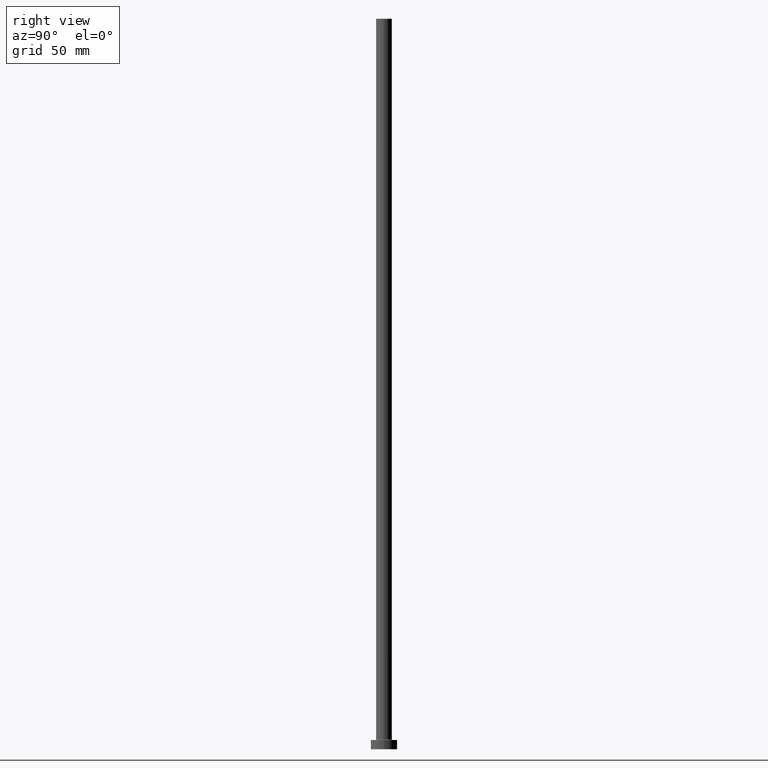
[diagram: clean part render]
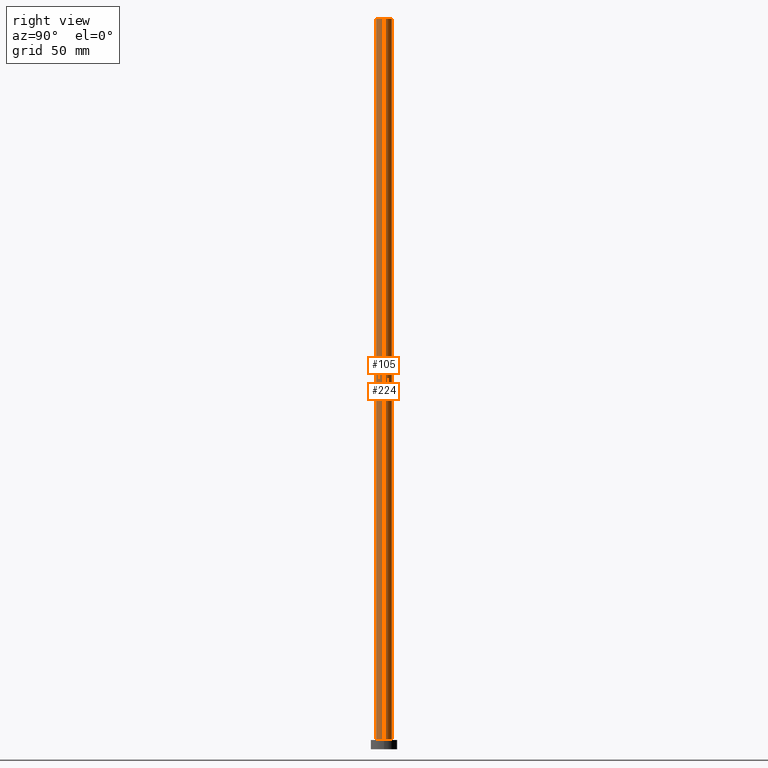
[diagram: same view with one multi-face feature highlighted, each face labeled with its STEP entity id]
A machine part, right view. The highlighted faces form ONE feature: a constant-radius fillet chain: 2 tangent blend faces with common blend radius 6 mm. The faces share edges in the B-rep.
Their STEP definitions:
[1] entity #224 (Cylinder):
#18 = CARTESIAN_POINT ( 'NONE',  ( 0.000000000000000000, 0.000000000000000000, 550.0000000000000000 ) ) ;
#46 = EDGE_CURVE ( 'NONE', #440, #455, #155, .T. ) ;
#48 = FACE_OUTER_BOUND ( 'NONE', #233, .T. ) ;
#71 = ORIENTED_EDGE ( 'NONE', *, *, #122, .T. ) ;
#74 = CIRCLE ( 'NONE', #89, 6.000000000000000888 ) ;
#89 = AXIS2_PLACEMENT_3D ( 'NONE', #18, #441, #306 ) ;
#107 = CARTESIAN_POINT ( 'NONE',  ( -6.000000000000000888, 0.000000000000000000, 7.499999999999951150 ) ) ;
#109 = CYLINDRICAL_SURFACE ( 'NONE', #167, 6.000000000000000888 ) ;
#117 = CARTESIAN_POINT ( 'NONE',  ( -6.000000000000000888, 0.000000000000000000, 550.0000000000000000 ) ) ;
#122 = EDGE_CURVE ( 'NONE', #393, #455, #129, .T. ) ;
#127 = CARTESIAN_POINT ( 'NONE',  ( 6.000000000000000888, 7.347880794884120722E-16, 550.0000000000000000 ) ) ;
#129 = CIRCLE ( 'NONE', #313, 6.000000000000000888 ) ;
#132 = CARTESIAN_POINT ( 'NONE',  ( 0.000000000000000000, 0.000000000000000000, 7.499999999999951150 ) ) ;
#136 = DIRECTION ( 'NONE',  ( -1.000000000000000000, 0.000000000000000000, 0.000000000000000000 ) ) ;
#148 = EDGE_CURVE ( 'NONE', #432, #393, #375, .T. ) ;
#155 = LINE ( 'NONE', #117, #220 ) ;
#158 = DIRECTION ( 'NONE',  ( -0.000000000000000000, -0.000000000000000000, -1.000000000000000000 ) ) ;
#167 = AXIS2_PLACEMENT_3D ( 'NONE', #321, #361, #136 ) ;
#191 = EDGE_CURVE ( 'NONE', #432, #440, #74, .T. ) ;
#195 = ORIENTED_EDGE ( 'NONE', *, *, #148, .T. ) ;
#220 = VECTOR ( 'NONE', #158, 1000.000000000000000 ) ;
#224 = ADVANCED_FACE ( 'NONE', ( #48 ), #109, .T. ) ;
#228 = DIRECTION ( 'NONE',  ( 0.000000000000000000, 0.000000000000000000, 1.000000000000000000 ) ) ;
#230 = VECTOR ( 'NONE', #264, 1000.000000000000000 ) ;
#233 = EDGE_LOOP ( 'NONE', ( #353, #195, #71, #381 ) ) ;
#264 = DIRECTION ( 'NONE',  ( -0.000000000000000000, -0.000000000000000000, -1.000000000000000000 ) ) ;
#306 = DIRECTION ( 'NONE',  ( 1.000000000000000000, 0.000000000000000000, 0.000000000000000000 ) ) ;
#313 = AXIS2_PLACEMENT_3D ( 'NONE', #132, #228, #382 ) ;
#321 = CARTESIAN_POINT ( 'NONE',  ( 0.000000000000000000, 0.000000000000000000, 550.0000000000000000 ) ) ;
#337 = CARTESIAN_POINT ( 'NONE',  ( 6.000000000000000888, 7.347880794884120722E-16, 550.0000000000000000 ) ) ;
#353 = ORIENTED_EDGE ( 'NONE', *, *, #191, .F. ) ;
#361 = DIRECTION ( 'NONE',  ( -0.000000000000000000, -0.000000000000000000, -1.000000000000000000 ) ) ;
#375 = LINE ( 'NONE', #127, #230 ) ;
#381 = ORIENTED_EDGE ( 'NONE', *, *, #46, .F. ) ;
#382 = DIRECTION ( 'NONE',  ( 1.000000000000000000, 0.000000000000000000, 0.000000000000000000 ) ) ;
#388 = CARTESIAN_POINT ( 'NONE',  ( -6.000000000000000888, 0.000000000000000000, 550.0000000000000000 ) ) ;
#393 = VERTEX_POINT ( 'NONE', #431 ) ;
#431 = CARTESIAN_POINT ( 'NONE',  ( 6.000000000000000888, 7.347880794884120722E-16, 7.499999999999951150 ) ) ;
#432 = VERTEX_POINT ( 'NONE', #337 ) ;
#440 = VERTEX_POINT ( 'NONE', #388 ) ;
#441 = DIRECTION ( 'NONE',  ( 0.000000000000000000, 0.000000000000000000, 1.000000000000000000 ) ) ;
#455 = VERTEX_POINT ( 'NONE', #107 ) ;
[2] entity #105 (Cylinder):
#6 = EDGE_CURVE ( 'NONE', #455, #393, #116, .T. ) ;
#46 = EDGE_CURVE ( 'NONE', #440, #455, #155, .T. ) ;
#94 = ORIENTED_EDGE ( 'NONE', *, *, #148, .F. ) ;
#98 = ORIENTED_EDGE ( 'NONE', *, *, #408, .F. ) ;
#104 = ORIENTED_EDGE ( 'NONE', *, *, #46, .T. ) ;
#105 = ADVANCED_FACE ( 'NONE', ( #229 ), #197, .T. ) ;
#107 = CARTESIAN_POINT ( 'NONE',  ( -6.000000000000000888, 0.000000000000000000, 7.499999999999951150 ) ) ;
#116 = CIRCLE ( 'NONE', #426, 6.000000000000000888 ) ;
#117 = CARTESIAN_POINT ( 'NONE',  ( -6.000000000000000888, 0.000000000000000000, 550.0000000000000000 ) ) ;
#120 = DIRECTION ( 'NONE',  ( 1.000000000000000000, 0.000000000000000000, 0.000000000000000000 ) ) ;
#121 = DIRECTION ( 'NONE',  ( 1.000000000000000000, 0.000000000000000000, 0.000000000000000000 ) ) ;
#123 = DIRECTION ( 'NONE',  ( -0.000000000000000000, -0.000000000000000000, -1.000000000000000000 ) ) ;
#127 = CARTESIAN_POINT ( 'NONE',  ( 6.000000000000000888, 7.347880794884120722E-16, 550.0000000000000000 ) ) ;
#148 = EDGE_CURVE ( 'NONE', #432, #393, #375, .T. ) ;
#155 = LINE ( 'NONE', #117, #220 ) ;
#158 = DIRECTION ( 'NONE',  ( -0.000000000000000000, -0.000000000000000000, -1.000000000000000000 ) ) ;
#165 = EDGE_LOOP ( 'NONE', ( #94, #98, #104, #277 ) ) ;
#170 = CARTESIAN_POINT ( 'NONE',  ( 0.000000000000000000, 0.000000000000000000, 550.0000000000000000 ) ) ;
#197 = CYLINDRICAL_SURFACE ( 'NONE', #234, 6.000000000000000888 ) ;
#220 = VECTOR ( 'NONE', #158, 1000.000000000000000 ) ;
#222 = DIRECTION ( 'NONE',  ( 0.000000000000000000, 0.000000000000000000, 1.000000000000000000 ) ) ;
#229 = FACE_OUTER_BOUND ( 'NONE', #165, .T. ) ;
#230 = VECTOR ( 'NONE', #264, 1000.000000000000000 ) ;
#234 = AXIS2_PLACEMENT_3D ( 'NONE', #341, #123, #340 ) ;
#264 = DIRECTION ( 'NONE',  ( -0.000000000000000000, -0.000000000000000000, -1.000000000000000000 ) ) ;
#277 = ORIENTED_EDGE ( 'NONE', *, *, #6, .T. ) ;
#304 = CIRCLE ( 'NONE', #312, 6.000000000000000888 ) ;
#312 = AXIS2_PLACEMENT_3D ( 'NONE', #170, #436, #121 ) ;
#337 = CARTESIAN_POINT ( 'NONE',  ( 6.000000000000000888, 7.347880794884120722E-16, 550.0000000000000000 ) ) ;
#340 = DIRECTION ( 'NONE',  ( -1.000000000000000000, 0.000000000000000000, 0.000000000000000000 ) ) ;
#341 = CARTESIAN_POINT ( 'NONE',  ( 0.000000000000000000, 0.000000000000000000, 550.0000000000000000 ) ) ;
#375 = LINE ( 'NONE', #127, #230 ) ;
#388 = CARTESIAN_POINT ( 'NONE',  ( -6.000000000000000888, 0.000000000000000000, 550.0000000000000000 ) ) ;
#393 = VERTEX_POINT ( 'NONE', #431 ) ;
#404 = CARTESIAN_POINT ( 'NONE',  ( 0.000000000000000000, 0.000000000000000000, 7.499999999999951150 ) ) ;
#408 = EDGE_CURVE ( 'NONE', #440, #432, #304, .T. ) ;
#426 = AXIS2_PLACEMENT_3D ( 'NONE', #404, #222, #120 ) ;
#431 = CARTESIAN_POINT ( 'NONE',  ( 6.000000000000000888, 7.347880794884120722E-16, 7.499999999999951150 ) ) ;
#432 = VERTEX_POINT ( 'NONE', #337 ) ;
#436 = DIRECTION ( 'NONE',  ( 0.000000000000000000, 0.000000000000000000, 1.000000000000000000 ) ) ;
#440 = VERTEX_POINT ( 'NONE', #388 ) ;
#455 = VERTEX_POINT ( 'NONE', #107 ) ;